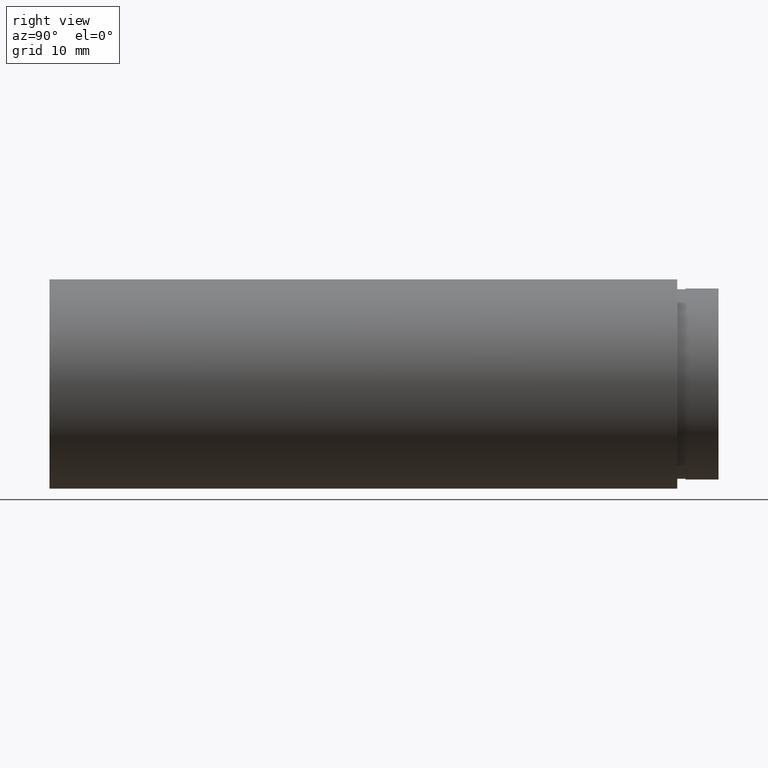
[diagram: clean part render]
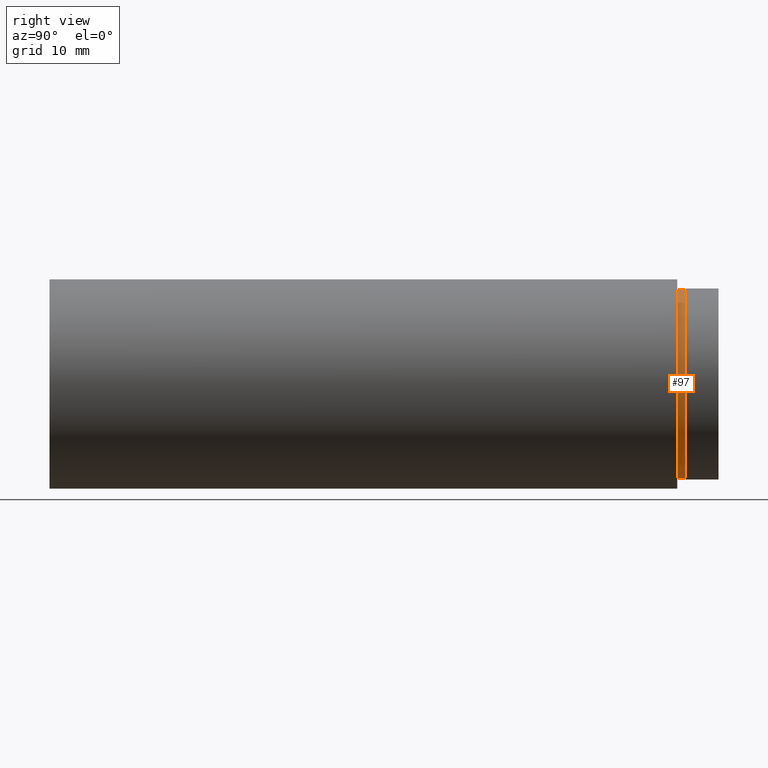
[diagram: same view with one face highlighted and labeled with its STEP entity id]
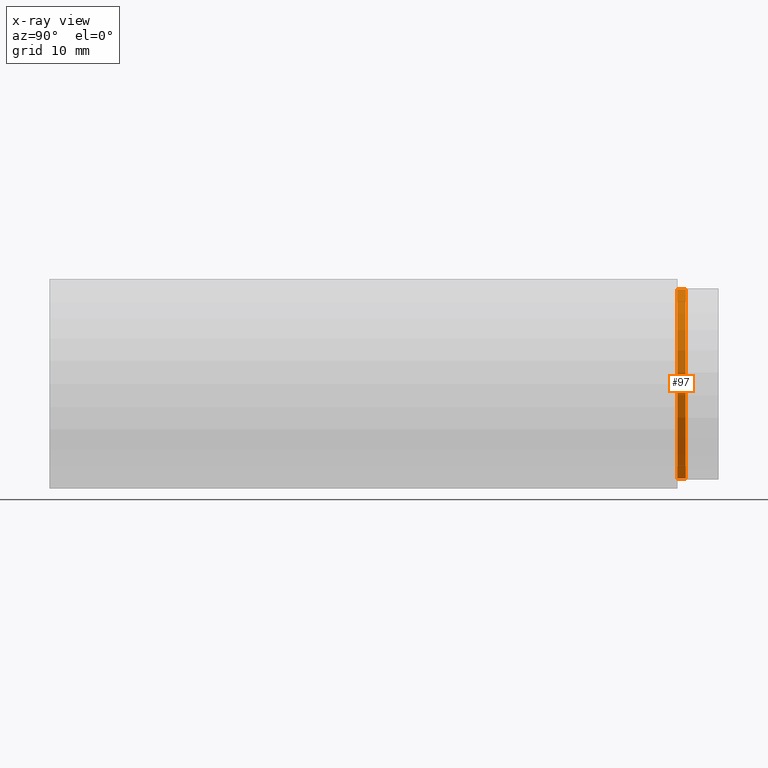
[diagram: x-ray of the same camera — body ghosted, the highlighted face saturated]
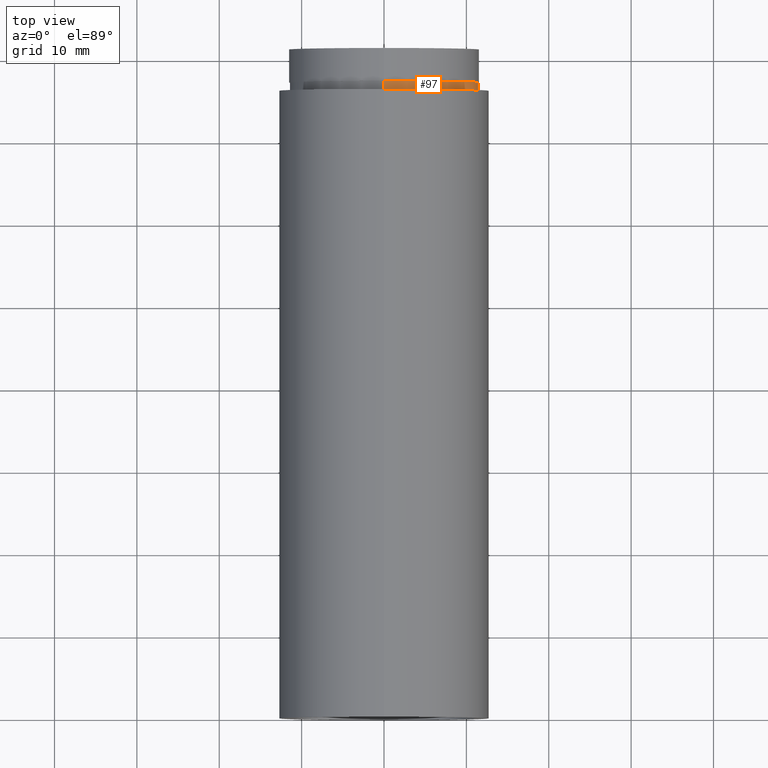
[diagram: same view with one face highlighted and labeled with its STEP entity id]
A machine part, right view. The second image highlights one B-rep face of the part: STEP entity #97.
The next image is the same camera in x-ray: the body ghosted, the highlighted face saturated — about 0% of this face is hidden behind the body in this view.
A second angle (top view) of the same face is appended — the face is thin or edge-on in the first view.
In plain terms, the highlighted cylindrical surface (partial cylindrical patch) has radius 11.5 mm, axis along (-0, 1, -0).
Its self-contained STEP definition (entity closure, byte-faithful):
#7 = CARTESIAN_POINT ( 'NONE',  ( 0.0000000000000000000, 161.3761669434274500, 0.0000000000000000000 ) ) ;
#10 = FACE_OUTER_BOUND ( 'NONE', #620, .T. ) ;
#32 = VERTEX_POINT ( 'NONE', #245 ) ;
#53 = DIRECTION ( 'NONE',  ( -0.0000000000000000000, 1.000000000000000000, -0.0000000000000000000 ) ) ;
#65 = AXIS2_PLACEMENT_3D ( 'NONE', #7, #53, #205 ) ;
#97 = ADVANCED_FACE ( 'NONE', ( #10 ), #149, .T. ) ;
#109 = ORIENTED_EDGE ( 'NONE', *, *, #209, .F. ) ;
#115 = CARTESIAN_POINT ( 'NONE',  ( 1.408343819019457600E-015, 161.3761669434274500, -11.50000000000001100 ) ) ;
#126 = VECTOR ( 'NONE', #438, 1000.000000000000000 ) ;
#137 = CARTESIAN_POINT ( 'NONE',  ( 1.408343819019457600E-015, 77.19999999999998900, -11.50000000000001100 ) ) ;
#143 = VECTOR ( 'NONE', #313, 1000.000000000000000 ) ;
#149 = CYLINDRICAL_SURFACE ( 'NONE', #65, 11.50000000000001100 ) ;
#158 = EDGE_CURVE ( 'NONE', #361, #32, #202, .T. ) ;
#162 = CARTESIAN_POINT ( 'NONE',  ( 0.0000000000000000000, 77.19999999999998900, 0.0000000000000000000 ) ) ;
#170 = DIRECTION ( 'NONE',  ( -0.0000000000000000000, 1.000000000000000000, -0.0000000000000000000 ) ) ;
#173 = EDGE_CURVE ( 'NONE', #361, #331, #376, .T. ) ;
#201 = CARTESIAN_POINT ( 'NONE',  ( 0.0000000000000000000, 161.3761669434274500, 11.50000000000001100 ) ) ;
#202 = CIRCLE ( 'NONE', #601, 11.50000000000001100 ) ;
#205 = DIRECTION ( 'NONE',  ( 0.0000000000000000000, 0.0000000000000000000, 1.000000000000000000 ) ) ;
#209 = EDGE_CURVE ( 'NONE', #331, #478, #256, .T. ) ;
#231 = EDGE_CURVE ( 'NONE', #32, #478, #373, .T. ) ;
#245 = CARTESIAN_POINT ( 'NONE',  ( 1.408343819019457600E-015, 76.19999999999998900, -11.50000000000001100 ) ) ;
#256 = CIRCLE ( 'NONE', #300, 11.50000000000001100 ) ;
#300 = AXIS2_PLACEMENT_3D ( 'NONE', #162, #170, #598 ) ;
#313 = DIRECTION ( 'NONE',  ( -0.0000000000000000000, 1.000000000000000000, -0.0000000000000000000 ) ) ;
#321 = ORIENTED_EDGE ( 'NONE', *, *, #231, .T. ) ;
#331 = VERTEX_POINT ( 'NONE', #358 ) ;
#358 = CARTESIAN_POINT ( 'NONE',  ( 0.0000000000000000000, 77.19999999999998900, 11.50000000000001100 ) ) ;
#361 = VERTEX_POINT ( 'NONE', #556 ) ;
#373 = LINE ( 'NONE', #115, #143 ) ;
#376 = LINE ( 'NONE', #201, #126 ) ;
#395 = DIRECTION ( 'NONE',  ( -0.0000000000000000000, 1.000000000000000000, -0.0000000000000000000 ) ) ;
#420 = ORIENTED_EDGE ( 'NONE', *, *, #158, .T. ) ;
#438 = DIRECTION ( 'NONE',  ( -0.0000000000000000000, 1.000000000000000000, -0.0000000000000000000 ) ) ;
#478 = VERTEX_POINT ( 'NONE', #137 ) ;
#500 = DIRECTION ( 'NONE',  ( 0.0000000000000000000, 0.0000000000000000000, 1.000000000000000000 ) ) ;
#541 = CARTESIAN_POINT ( 'NONE',  ( 0.0000000000000000000, 76.19999999999998900, 0.0000000000000000000 ) ) ;
#556 = CARTESIAN_POINT ( 'NONE',  ( 0.0000000000000000000, 76.19999999999998900, 11.50000000000001100 ) ) ;
#598 = DIRECTION ( 'NONE',  ( 0.0000000000000000000, 0.0000000000000000000, 1.000000000000000000 ) ) ;
#601 = AXIS2_PLACEMENT_3D ( 'NONE', #541, #395, #500 ) ;
#608 = ORIENTED_EDGE ( 'NONE', *, *, #173, .F. ) ;
#620 = EDGE_LOOP ( 'NONE', ( #420, #321, #109, #608 ) ) ;